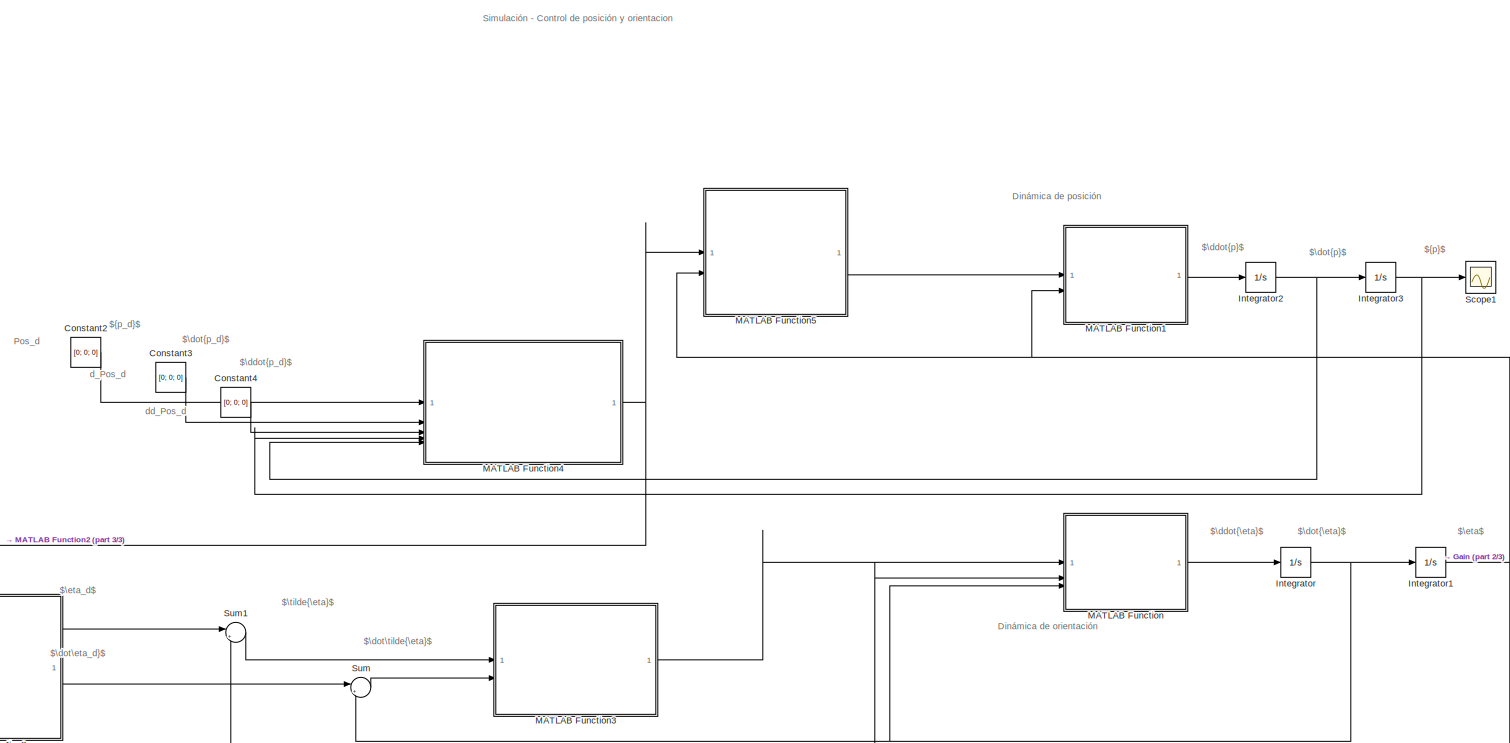
[diagram: root canvas - part 1/3, most of the canvas]
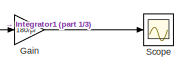
[diagram: root canvas - part 2/3, bottom right region]
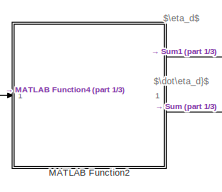
[diagram: root canvas - part 3/3, bottom left region]
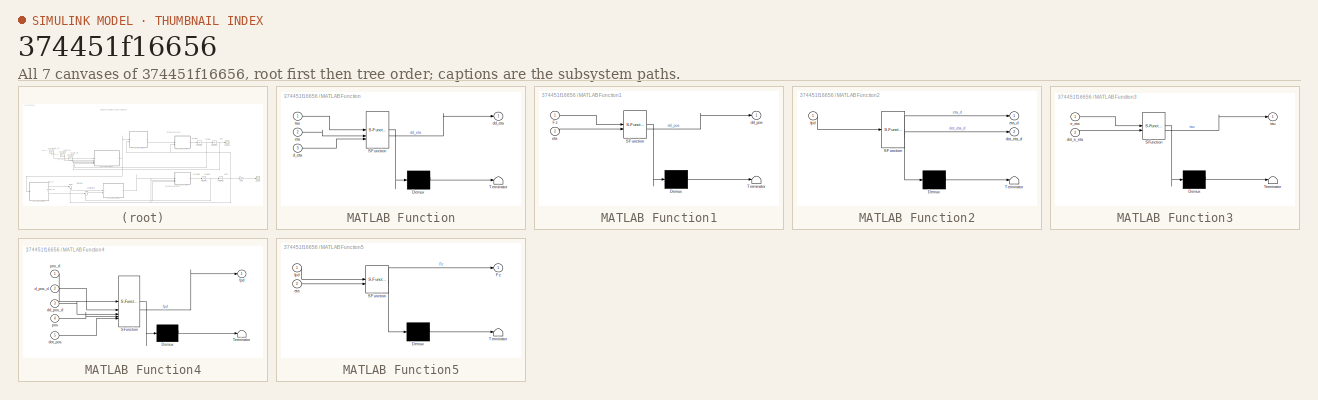
[diagram: thumbnail index - all 7 canvases of the model, root first then tree order]
MODEL slx_374451f16656
KIND model
CONFIG AbsTol = auto
CONFIG EnableMultiTasking = off
CONFIG FixedStep = auto
CONFIG MaxStep = auto
CONFIG MinStep = auto
CONFIG RelTol = 1e-3
CONFIG SampleTimeConstraint = Unconstrained
CONFIG SolverName = VariableStepAuto
CONFIG StartTime = 0.0
CONFIG StopTime = 10.0
BLOCK [Constant] Constant2
  Value = [0; 0; 0]
BLOCK [Constant] Constant3
  Value = [0; 0; 0]
BLOCK [Constant] Constant4
  Value = [0; 0; 0]
BLOCK [Gain] Gain
  Gain = 180/pi
BLOCK [Integrator] Integrator
  InitialCondition = [0; 0; 0]
BLOCK [Integrator] Integrator1
  InitialCondition = [0; 0; 0]
BLOCK [Integrator] Integrator2
  InitialCondition = [0; 0; 0]
BLOCK [Integrator] Integrator3
  InitialCondition = [0; 0; 0]
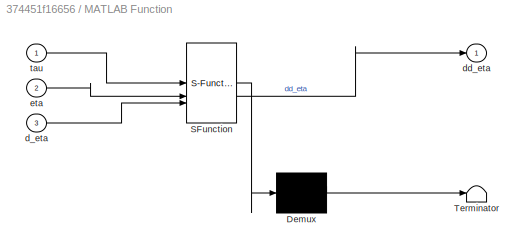
BLOCK [SubSystem] MATLAB Function
  ErrorFcn = Stateflow.Translate.translate
  PermitHierarchicalResolution = ExplicitOnly
  SFBlockType = MATLAB Function
  TreatAsAtomicUnit = on
BLOCK [Demux] MATLAB Function/ Demux 
  Outputs = 1
BLOCK [S-Function] MATLAB Function/ SFunction 
  EnableBusSupport = on
  FunctionName = sf_sfun
  PortCounts = [3 2]
  SFcnIsStateOwnerBlock = off
  SFunctionDeploymentMode = off
  Tag = Stateflow S-Function 2
BLOCK [Terminator] MATLAB Function/ Terminator 
BLOCK [Inport] MATLAB Function/d_eta
  Port = 3
BLOCK [Outport] MATLAB Function/dd_eta
BLOCK [Inport] MATLAB Function/eta
  Port = 2
BLOCK [Inport] MATLAB Function/tau
BLOCK [SubSystem] MATLAB Function1
  ErrorFcn = Stateflow.Translate.translate
  PermitHierarchicalResolution = ExplicitOnly
  SFBlockType = MATLAB Function
  TreatAsAtomicUnit = on
BLOCK [Demux] MATLAB Function1/ Demux 
  Outputs = 1
BLOCK [S-Function] MATLAB Function1/ SFunction 
  EnableBusSupport = on
  FunctionName = sf_sfun
  PortCounts = [2 2]
  SFcnIsStateOwnerBlock = off
  SFunctionDeploymentMode = off
  Tag = Stateflow S-Function 1
BLOCK [Terminator] MATLAB Function1/ Terminator 
BLOCK [Inport] MATLAB Function1/Fz
BLOCK [Outport] MATLAB Function1/dd_pos
BLOCK [Inport] MATLAB Function1/eta
  Port = 2
BLOCK [SubSystem] MATLAB Function2
  ErrorFcn = Stateflow.Translate.translate
  PermitHierarchicalResolution = ExplicitOnly
  SFBlockType = MATLAB Function
  TreatAsAtomicUnit = on
BLOCK [Demux] MATLAB Function2/ Demux 
  Outputs = 1
BLOCK [S-Function] MATLAB Function2/ SFunction 
  EnableBusSupport = on
  FunctionName = sf_sfun
  PortCounts = [1 3]
  SFcnIsStateOwnerBlock = off
  SFunctionDeploymentMode = off
  Tag = Stateflow S-Function 3
BLOCK [Terminator] MATLAB Function2/ Terminator 
BLOCK [Outport] MATLAB Function2/dot_eta_d
  Port = 2
BLOCK [Outport] MATLAB Function2/eta_d
BLOCK [Inport] MATLAB Function2/fpd
BLOCK [SubSystem] MATLAB Function3
  ErrorFcn = Stateflow.Translate.translate
  PermitHierarchicalResolution = ExplicitOnly
  SFBlockType = MATLAB Function
  TreatAsAtomicUnit = on
BLOCK [Demux] MATLAB Function3/ Demux 
  Outputs = 1
BLOCK [S-Function] MATLAB Function3/ SFunction 
  EnableBusSupport = on
  FunctionName = sf_sfun
  PortCounts = [2 2]
  SFcnIsStateOwnerBlock = off
  SFunctionDeploymentMode = off
  Tag = Stateflow S-Function 4
BLOCK [Terminator] MATLAB Function3/ Terminator 
BLOCK [Inport] MATLAB Function3/dot_e_eta
  Port = 2
BLOCK [Inport] MATLAB Function3/e_eta
BLOCK [Outport] MATLAB Function3/tau
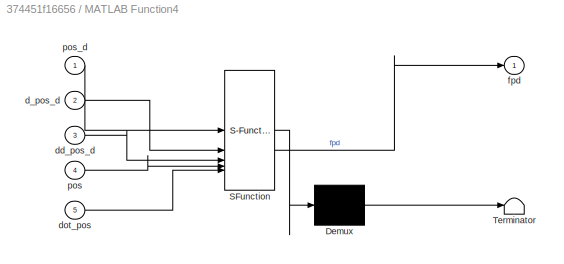
BLOCK [SubSystem] MATLAB Function4
  ErrorFcn = Stateflow.Translate.translate
  PermitHierarchicalResolution = ExplicitOnly
  SFBlockType = MATLAB Function
  TreatAsAtomicUnit = on
BLOCK [Demux] MATLAB Function4/ Demux 
  Outputs = 1
BLOCK [S-Function] MATLAB Function4/ SFunction 
  EnableBusSupport = on
  FunctionName = sf_sfun
  PortCounts = [5 2]
  SFcnIsStateOwnerBlock = off
  SFunctionDeploymentMode = off
  Tag = Stateflow S-Function 5
BLOCK [Terminator] MATLAB Function4/ Terminator 
BLOCK [Inport] MATLAB Function4/d_pos_d
  Port = 2
BLOCK [Inport] MATLAB Function4/dd_pos_d
  Port = 3
BLOCK [Inport] MATLAB Function4/dot_pos
  Port = 5
BLOCK [Outport] MATLAB Function4/fpd
BLOCK [Inport] MATLAB Function4/pos
  Port = 4
BLOCK [Inport] MATLAB Function4/pos_d
BLOCK [SubSystem] MATLAB Function5
  ErrorFcn = Stateflow.Translate.translate
  PermitHierarchicalResolution = ExplicitOnly
  SFBlockType = MATLAB Function
  TreatAsAtomicUnit = on
BLOCK [Demux] MATLAB Function5/ Demux 
  Outputs = 1
BLOCK [S-Function] MATLAB Function5/ SFunction 
  EnableBusSupport = on
  FunctionName = sf_sfun
  PortCounts = [2 2]
  SFcnIsStateOwnerBlock = off
  SFunctionDeploymentMode = off
  Tag = Stateflow S-Function 6
BLOCK [Terminator] MATLAB Function5/ Terminator 
BLOCK [Outport] MATLAB Function5/Fz
BLOCK [Inport] MATLAB Function5/eta
  Port = 2
BLOCK [Inport] MATLAB Function5/fpd
BLOCK [Scope] Scope
  Floating = off
  NumInputPorts = 1
  ScopeSpecificationString = Simulink.scopes.TimeScopeBlockCfg('CurrentConfiguration', extmgr.ConfigurationSet(extmgr.Configuration('Core','General UI',true),extmgr.Configuration('Core','Source UI',true),extmgr.Configuration('Sources','WiredSimulink',true),extmgr.Configuration('Visuals','Time Domain',true,'SerializedDisplays',{struct('MinYLimReal','-6.43813','MaxYLimReal','6.51247','YLabelReal','','MinYLimMag','0.00000','MaxY...<+1462ch>
BLOCK [Scope] Scope1
  Floating = off
  NumInputPorts = 1
  ScopeSpecificationString = Simulink.scopes.TimeScopeBlockCfg('CurrentConfiguration', extmgr.ConfigurationSet(extmgr.Configuration('Core','General UI',true),extmgr.Configuration('Core','Source UI',true),extmgr.Configuration('Sources','WiredSimulink',true,'DataLoggingVariableName','ScopeData1'),extmgr.Configuration('Visuals','Time Domain',true,'SerializedDisplays',{struct('MinYLimReal','-0.1102','MaxYLimReal','0.9918','YLabel...<+1516ch>
BLOCK [Sum] Sum
  Inputs = |+-
BLOCK [Sum] Sum1
  Inputs = |+-
ANNOTATION (root): Dinámica de orientación
ANNOTATION (root): Dinámica de posición
ANNOTATION (root): Simulación - Control de posición y orientacion
ANNOTATION (root): $\ddot{\eta}$
ANNOTATION (root): $\ddot{p}$
ANNOTATION (root): $\dot{p}$
ANNOTATION (root): ${p}$
ANNOTATION (root): $\dot{\eta}$
ANNOTATION (root): $\eta$
ANNOTATION (root): $\ddot{p_d}$
ANNOTATION (root): $\dot\eta_d}$
ANNOTATION (root): $\dot\tilde{\eta}$
ANNOTATION (root): $\dot{p_d}$
ANNOTATION (root): $\eta_d$
ANNOTATION (root): $\tilde{\eta}$
ANNOTATION (root): ${p_d}$
ANNOTATION (root): Pos_d
ANNOTATION (root): d_Pos_d
ANNOTATION (root): dd_Pos_d
LINE Constant2:1 -> MATLAB Function4:1
LINE Constant3:1 -> MATLAB Function4:2
LINE Constant4:1 -> MATLAB Function4:3
LINE Gain:1 -> Scope:1
NET Integrator1:1 -> Gain:1, MATLAB Function1:2, MATLAB Function5:2, MATLAB Function:2, Sum1:2
NET Integrator2:1 -> Integrator3:1, MATLAB Function4:5
NET Integrator3:1 -> MATLAB Function4:4, Scope1:1
NET Integrator:1 -> Integrator1:1, MATLAB Function:3, Sum:2
LINE MATLAB Function1:1 -> Integrator2:1
LINE MATLAB Function2:1 -> Sum1:1
LINE MATLAB Function2:2 -> Sum:1
LINE MATLAB Function3:1 -> MATLAB Function:1
NET MATLAB Function4:1 -> MATLAB Function2:1, MATLAB Function5:1
LINE MATLAB Function5:1 -> MATLAB Function1:1
LINE MATLAB Function:1 -> Integrator:1
LINE Sum1:1 -> MATLAB Function3:1
LINE Sum:1 -> MATLAB Function3:2
note: NET lines group one-source signal fan-out (src -> all destinations, sorted); 1:1 wires keep LINE
CHART MATLAB Function1 states=1 transitions=1
  STATE_LABEL 'eML_blk_kernel()'
  STATE_LABEL 'SCRIPT:\nfunction dd_pos = position_dynamics(Fz, eta)\n    \n%%% Masa del quad\nm = 0.706; %%%[kg]\n\n%%% Vector de gravedad\ng = 9.81;\ngz = [0; 0; g];\n\n%%% Matriz de rotacion\n\nR_11 = cos(eta(2))*cos(eta(3));\nR_12 = sin(eta(1))*sin(eta(2))*cos(eta(3)) - cos(eta(1))*sin(eta(3));\nR_13 = cos(eta(1))*sin(eta(2))*cos(eta(3)) + sin(eta(1))*sin(eta(3));\nR_21 = cos(eta(2))*sin(eta(3));\nR_22 = sin(eta(1))*sin(eta...<+419ch>'
CHART MATLAB Function states=1 transitions=1
  STATE_LABEL 'eML_blk_kernel()'
  STATE_LABEL 'SCRIPT:\nfunction dd_eta = orientation_dynamics(tau, eta, d_eta)\n    \n    % Matriz de inercia (momento de inercia)\n    Ixx = 0.00273;\n    Iyy = 0.00273;\n    Izz = 0.00541;\n    I = diag([Ixx, Iyy, Izz]);\n\n    % Matriz de transformación PHI\n    PHI_11 = 1;\n    PHI_12 = sin(eta(1))*tan(eta(2));\n    PHI_13 = cos(eta(1))*tan(eta(2));\n    PHI_21 = 0;\n    PHI_22 = cos(eta(1));\n    PHI_23 = -sin(eta(1));\n ...<+1323ch>'
CHART MATLAB Function2 states=1 transitions=1
  STATE_LABEL 'eML_blk_kernel()'
  STATE_LABEL 'SCRIPT:\nfunction [eta_d,dot_eta_d] = orientacion_deseada(fpd)\n\n%%% Orientaciones deseadas y sus derivadas\npsi_d = 0; %% Angulo psi deseado\ndot_psi_d = 0; %% Derivada del angulo psi deseado\n\nw = (1/fpd(3))*(fpd(2)*sin(psi_d) + fpd(1)*cos(psi_d));\ntheta_d = atan(w); %% Angulo theta deseado\ndw = (1/fpd(3))*(fpd(2)*dot_psi_d*cos(psi_d) - fpd(1)*dot_psi_d*sin(psi_d)); \ndot_theta_d = (1/(1 + w*w))*dw; %...<+420ch>'
CHART MATLAB Function3 states=1 transitions=1
  STATE_LABEL 'eML_blk_kernel()'
  STATE_LABEL 'SCRIPT:\nfunction tau = controller_orientation(e_eta,dot_e_eta)\n\nv1 = [0.9 0.9 0.9];\nv3 = [0.15 0.15 0.15];\n\n%%% Ganancias de los controladores\n\nKp = diag(v1);\nKd = diag(v3);\n\n\ntau = Kp*e_eta + Kd*dot_e_eta;\n'
CHART MATLAB Function4 states=1 transitions=1
  STATE_LABEL 'eML_blk_kernel()'
  STATE_LABEL 'SCRIPT:\nfunction fpd = controller_pos(pos_d,d_pos_d,dd_pos_d,pos,dot_pos)\n\n%%% Masa del quad\nm = 0.706;\n\n%%% Gravedad\ng = 9.81;\n\n%%% Vector error de posicion\n\ne_pos = pos_d - pos;\n\n%%% Vector dot_pos error\n\ndot_e_pos = d_pos_d - dot_pos;\n\n%%% Ganancias\nKpx = 3.9; %% Ganancia proporcional en x\nKpy = 3.9; %% Ganancia proporcional en y\nKpz = 11.7; %% Ganancia proporcional en z\nKdx = 1.95; %% Ganancia...<+305ch>'
CHART MATLAB Function5 states=1 transitions=1
  STATE_LABEL 'eML_blk_kernel()'
  STATE_LABEL 'SCRIPT:\nfunction Fz = Fuerza(fpd,eta)\n\nFz = fpd(3)/(cos(eta(1))*cos(eta(2)));\n'
CHART  states=0 transitions=0
CHART  states=0 transitions=0
CHART  states=0 transitions=0
CHART  states=0 transitions=0
CHART  states=0 transitions=0
CHART  states=0 transitions=0
